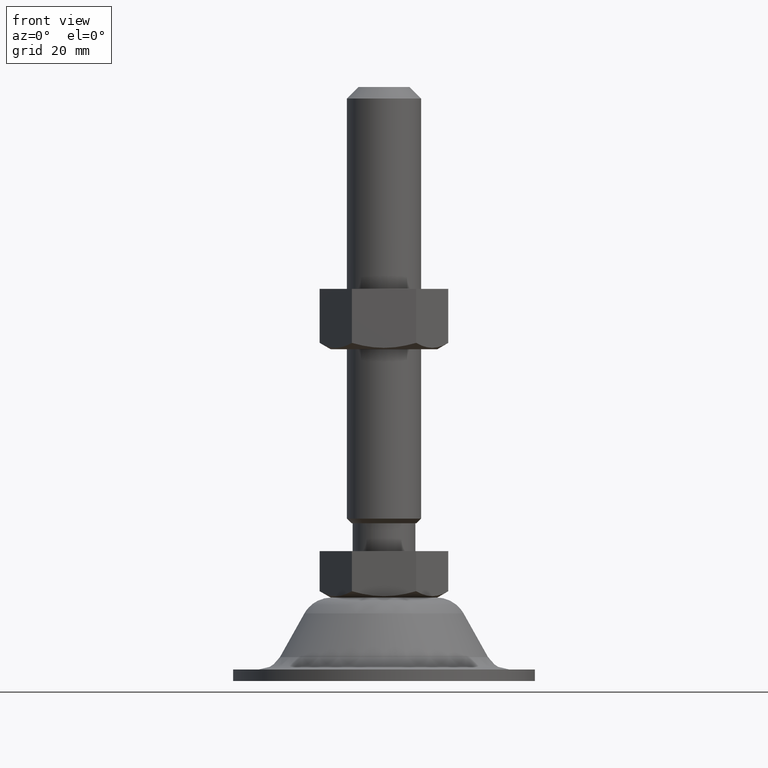
[diagram: clean part render]
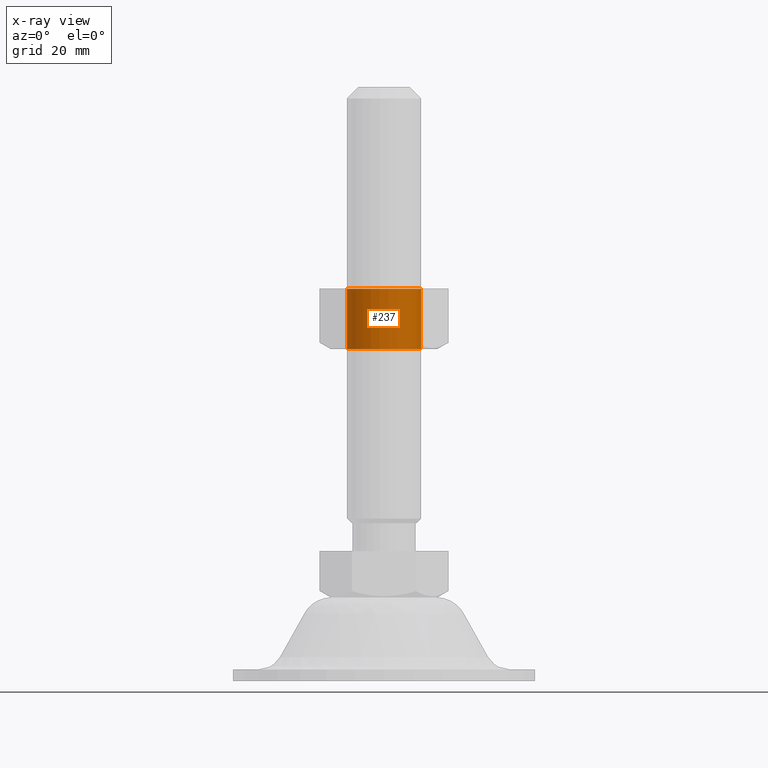
[diagram: x-ray — body ghosted, one internal face saturated and labeled with its STEP entity id]
A machine part, front view, then the same camera in x-ray: the body is ghosted and one INTERNAL B-rep face — a face not visible from any outside direction — is saturated and labeled: STEP entity #237.
In plain terms, the highlighted cylindrical surface (partial cylindrical patch) has radius 8 mm, axis along (0, 0, -1).
Its self-contained STEP definition (entity closure, byte-faithful):
#237=ADVANCED_FACE('',(#1132),#1131,.F.);
#1131=CYLINDRICAL_SURFACE('',#1870,8.00000000000E+00);
#1132=FACE_OUTER_BOUND('',#1871,.T.);
#1867=CARTESIAN_POINT('',(0.00000000000E+00,0.00000000000E+00,-9.43500000000E+02));
#1868=DIRECTION('',(-0.00000000000E+00,0.00000000000E+00,-1.00000000000E+00));
#1869=DIRECTION('',(1.00000000000E+00,1.22464679915E-16,0.00000000000E+00));
#1870=AXIS2_PLACEMENT_3D('',#1867,#1868,#1869);
#1871=EDGE_LOOP('',(#2285,#2286,#2287,#2288));
#2285=ORIENTED_EDGE('',*,*,#2496,.T.);
#2286=ORIENTED_EDGE('',*,*,#2499,.T.);
#2287=ORIENTED_EDGE('',*,*,#2493,.F.);
#2288=ORIENTED_EDGE('',*,*,#2500,.F.);
#2493=EDGE_CURVE('',#3829,#3830,#3831,.T.);
#2496=EDGE_CURVE('',#3844,#3843,#3851,.T.);
#2499=EDGE_CURVE('',#3843,#3830,#3869,.T.);
#2500=EDGE_CURVE('',#3844,#3829,#3875,.T.);
#3829=VERTEX_POINT('',#4813);
#3830=VERTEX_POINT('',#4814);
#3831=CIRCLE('',#4818,8.00000000000E+00);
#3843=VERTEX_POINT('',#4823);
#3844=VERTEX_POINT('',#4824);
#3851=CIRCLE('',#4832,8.00000000000E+00);
#3869=(BOUNDED_CURVE() B_SPLINE_CURVE(1,(#4837,#4838),.UNSPECIFIED.,.F.,.F.) B_SPLINE_CURVE_WITH_KNOTS((2,2),(8.33333343261E-02,9.16666667006E-01),.UNSPECIFIED.) CURVE() GEOMETRIC_REPRESENTATION_ITEM() RATIONAL_B_SPLINE_CURVE((1.00000000000E+00,1.00000000000E+00)) REPRESENTATION_ITEM('') );
#3875=(BOUNDED_CURVE() B_SPLINE_CURVE(1,(#4839,#4840),.UNSPECIFIED.,.F.,.F.) B_SPLINE_CURVE_WITH_KNOTS((2,2),(8.33333333333E-02,9.16666666667E-01),.UNSPECIFIED.) CURVE() GEOMETRIC_REPRESENTATION_ITEM() RATIONAL_B_SPLINE_CURVE((7.50000000000E-01,7.50000000000E-01)) REPRESENTATION_ITEM('') );
#4813=CARTESIAN_POINT('',(-8.00000000000E+00,0.00000000000E+00,4.35000000000E+01));
#4814=CARTESIAN_POINT('',(8.00000000000E+00,1.48029736617E-15,4.35000000000E+01));
#4815=CARTESIAN_POINT('',(0.00000000000E+00,0.00000000000E+00,4.35000000000E+01));
#4816=DIRECTION('',(0.00000000000E+00,0.00000000000E+00,1.00000000000E+00));
#4817=DIRECTION('',(-1.00000000000E+00,-1.22460635382E-16,0.00000000000E+00));
#4818=AXIS2_PLACEMENT_3D('',#4815,#4816,#4817);
#4823=CARTESIAN_POINT('',(8.00000000000E+00,1.48029736617E-15,5.65000000000E+01));
#4824=CARTESIAN_POINT('',(-8.00000000000E+00,0.00000000000E+00,5.65000000000E+01));
#4829=CARTESIAN_POINT('',(0.00000000000E+00,0.00000000000E+00,5.65000000000E+01));
#4830=DIRECTION('',(0.00000000000E+00,0.00000000000E+00,1.00000000000E+00));
#4831=DIRECTION('',(-1.00000000000E+00,-1.22460635382E-16,0.00000000000E+00));
#4832=AXIS2_PLACEMENT_3D('',#4829,#4830,#4831);
#4837=CARTESIAN_POINT('',(8.00000000000E+00,9.79717439318E-16,5.64999999845E+01));
#4838=CARTESIAN_POINT('',(8.00000000000E+00,9.79717439318E-16,4.34999999947E+01));
#4839=CARTESIAN_POINT('',(-8.00000000000E+00,-8.88178419700E-16,5.65000000000E+01));
#4840=CARTESIAN_POINT('',(-8.00000000000E+00,-8.88178419700E-16,4.35000000000E+01));